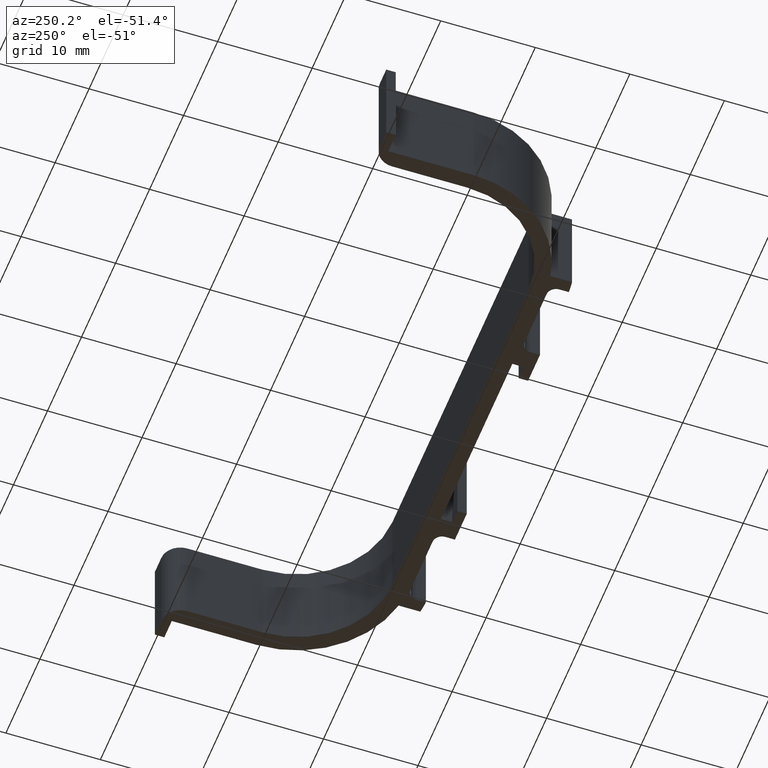
[diagram: clean part render]
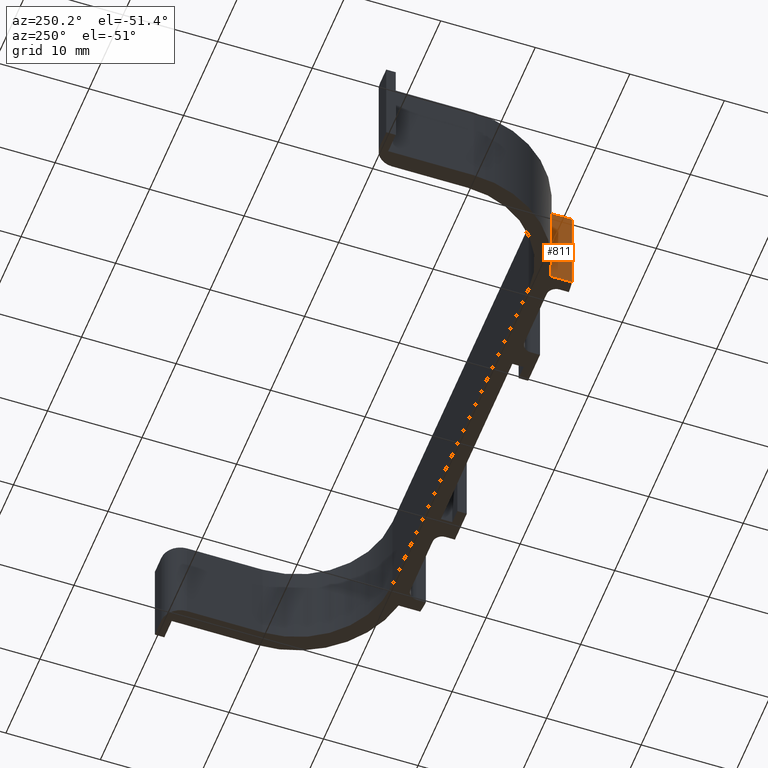
[diagram: same view with one face highlighted and labeled with its STEP entity id]
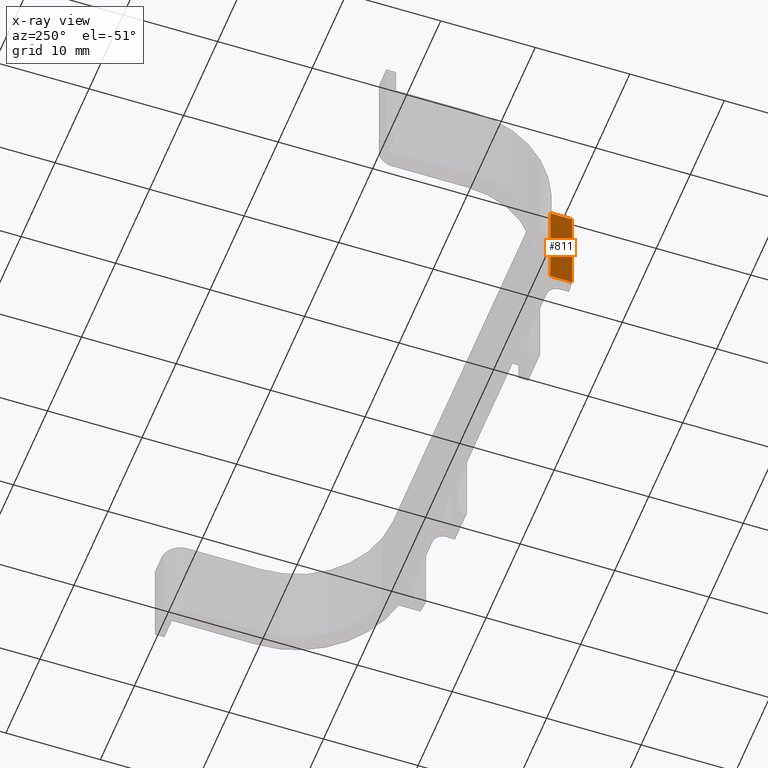
[diagram: x-ray of the same camera — body ghosted, the highlighted face saturated]
A machine part, auxiliary view. The second image highlights one B-rep face of the part: STEP entity #811.
The next image is the same camera in x-ray: the body ghosted, the highlighted face saturated — about 0% of this face is hidden behind the body in this view.
In plain terms, the highlighted planar face has unit normal (1, 0, 0).
Its self-contained STEP definition (entity closure, byte-faithful):
#24=PLANE('',#879);
#59=FACE_OUTER_BOUND('',#101,.T.);
#101=EDGE_LOOP('',(#673,#674,#675,#676));
#135=LINE('',#1159,#231);
#186=LINE('',#1301,#282);
#198=LINE('',#1325,#294);
#199=LINE('',#1327,#295);
#231=VECTOR('',#925,2.29055492974429);
#282=VECTOR('',#1024,2.29055492974429);
#294=VECTOR('',#1054,10.);
#295=VECTOR('',#1057,10.);
#353=VERTEX_POINT('',#1156);
#354=VERTEX_POINT('',#1158);
#420=VERTEX_POINT('',#1298);
#421=VERTEX_POINT('',#1300);
#434=EDGE_CURVE('',#353,#354,#135,.T.);
#505=EDGE_CURVE('',#420,#421,#186,.T.);
#518=EDGE_CURVE('',#421,#353,#198,.T.);
#519=EDGE_CURVE('',#420,#354,#199,.T.);
#673=ORIENTED_EDGE('',*,*,#434,.F.);
#674=ORIENTED_EDGE('',*,*,#518,.F.);
#675=ORIENTED_EDGE('',*,*,#505,.F.);
#676=ORIENTED_EDGE('',*,*,#519,.T.);
#811=ADVANCED_FACE('',(#59),#24,.F.);
#879=AXIS2_PLACEMENT_3D('',#1326,#1055,#1056);
#925=DIRECTION('',(0.,-1.,0.));
#1024=DIRECTION('',(0.,1.,0.));
#1054=DIRECTION('',(0.,0.,1.));
#1055=DIRECTION('center_axis',(1.,0.,0.));
#1056=DIRECTION('ref_axis',(0.,0.,-1.));
#1057=DIRECTION('',(0.,0.,1.));
#1156=CARTESIAN_POINT('',(-22.3,-1.57367703022683,5.));
#1158=CARTESIAN_POINT('',(-22.3,-3.86423195997111,5.));
#1159=CARTESIAN_POINT('',(-22.3,-3.86423195997111,5.));
#1298=CARTESIAN_POINT('',(-22.3,-3.86423195997111,-5.));
#1300=CARTESIAN_POINT('',(-22.3,-1.57367703022683,-5.));
#1301=CARTESIAN_POINT('',(-22.3,-3.86423195997111,-5.));
#1325=CARTESIAN_POINT('',(-22.3,-1.57367703022683,0.));
#1326=CARTESIAN_POINT('Origin',(-22.3,-1.57367703022683,0.));
#1327=CARTESIAN_POINT('',(-22.3,-3.86423195997111,0.));